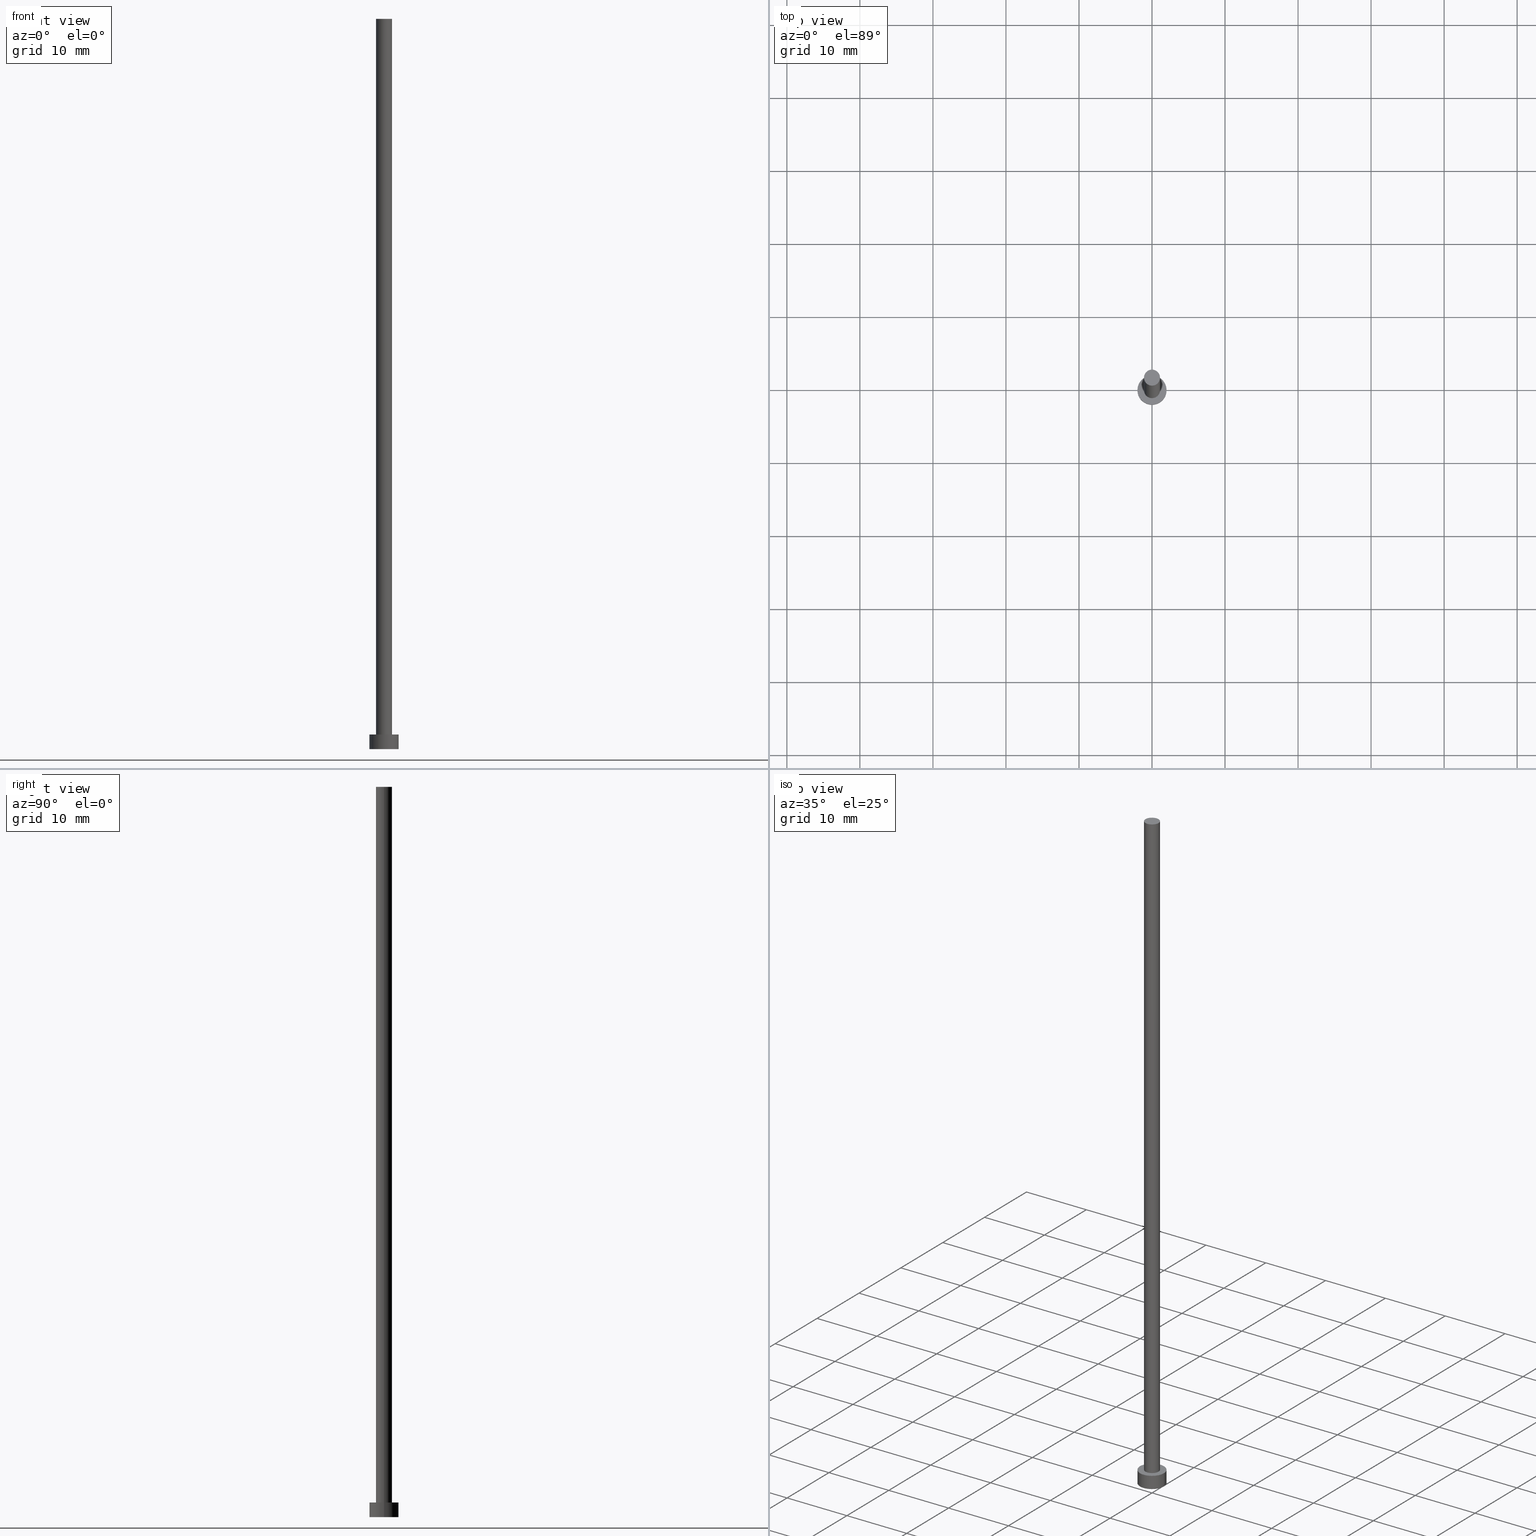
[diagram: canonical four-view strip — front | top / right | iso, engineering-drawing reading convention]
A machine part, canonical four-view strip (front | top / right | iso — engineering-drawing reading convention). The complete STEP part file that produces these views, byte-faithful:
ISO-10303-21;
HEADER;
FILE_DESCRIPTION (( 'STEP AP203' ),
    '1' );
FILE_NAME ('e103.STEP',
    '2023-02-13T14:55:09',
    ( '' ),
    ( '' ),
    'SwSTEP 2.0',
    'SolidWorks 2019',
    '' );
FILE_SCHEMA (( 'CONFIG_CONTROL_DESIGN' ));
ENDSEC;

DATA;
#1 = CARTESIAN_POINT ( 'NONE',  ( 1.100000000000000089, 1.347111479062088503E-16, 2.000000000000000000 ) ) ;
#2 = ORIENTED_EDGE ( 'NONE', *, *, #240, .T. ) ;
#3 = APPROVAL_PERSON_ORGANIZATION ( #106, #127, #14 ) ;
#4 = EDGE_LOOP ( 'NONE', ( #81, #147 ) ) ;
#5 = APPROVAL_PERSON_ORGANIZATION ( #168, #50, #136 ) ;
#6 = ORIENTED_EDGE ( 'NONE', *, *, #249, .F. ) ;
#7 = PERSON_AND_ORGANIZATION_ROLE ( 'classification_officer' ) ;
#8 = DIRECTION ( 'NONE',  ( -0.000000000000000000, -0.000000000000000000, -1.000000000000000000 ) ) ;
#9 = EDGE_CURVE ( 'NONE', #164, #171, #191, .T. ) ;
#10 = CARTESIAN_POINT ( 'NONE',  ( -2.000000000000000000, 0.000000000000000000, 2.000000000000000000 ) ) ;
#11 = SECURITY_CLASSIFICATION_LEVEL ( 'unclassified' ) ;
#12 = CIRCLE ( 'NONE', #80, 1.100000000000000089 ) ;
#13 = CARTESIAN_POINT ( 'NONE',  ( 0.000000000000000000, 0.000000000000000000, 2.000000000000000000 ) ) ;
#14 = APPROVAL_ROLE ( '' ) ;
#15 = CARTESIAN_POINT ( 'NONE',  ( 0.000000000000000000, 0.000000000000000000, 2.000000000000000000 ) ) ;
#16 = CYLINDRICAL_SURFACE ( 'NONE', #121, 2.000000000000000000 ) ;
#17 = AXIS2_PLACEMENT_3D ( 'NONE', #135, #90, #186 ) ;
#18 = CARTESIAN_POINT ( 'NONE',  ( 0.000000000000000000, 0.000000000000000000, 0.000000000000000000 ) ) ;
#19 = FACE_OUTER_BOUND ( 'NONE', #63, .T. ) ;
#20 = ORIENTED_EDGE ( 'NONE', *, *, #201, .F. ) ;
#21 = CIRCLE ( 'NONE', #166, 1.100000000000000089 ) ;
#22 = DIRECTION ( 'NONE',  ( -0.000000000000000000, -0.000000000000000000, -1.000000000000000000 ) ) ;
#23 = CC_DESIGN_PERSON_AND_ORGANIZATION_ASSIGNMENT ( #202, #146, ( #34 ) ) ;
#24 = PRODUCT_DEFINITION_SHAPE ( 'NONE', 'NONE',  #219 ) ;
#25 = EDGE_LOOP ( 'NONE', ( #139, #196, #62, #144 ) ) ;
#26 = AXIS2_PLACEMENT_3D ( 'NONE', #246, #8, #151 ) ;
#27 = APPROVAL_STATUS ( 'not_yet_approved' ) ;
#28 = DIRECTION ( 'NONE',  ( -0.000000000000000000, -0.000000000000000000, -1.000000000000000000 ) ) ;
#29 = EDGE_CURVE ( 'NONE', #171, #225, #12, .T. ) ;
#30 = SHAPE_DEFINITION_REPRESENTATION ( #24, #126 ) ;
#31 = LINE ( 'NONE', #71, #149 ) ;
#32 = DATE_AND_TIME ( #247, #184 ) ;
#33 = CARTESIAN_POINT ( 'NONE',  ( 0.000000000000000000, 0.000000000000000000, 2.000000000000000000 ) ) ;
#34 = PRODUCT_DEFINITION_FORMATION_WITH_SPECIFIED_SOURCE ( 'LIBOVOLN�', '', #108, .NOT_KNOWN. ) ;
#35 = FACE_OUTER_BOUND ( 'NONE', #4, .T. ) ;
#36 = ORIENTED_EDGE ( 'NONE', *, *, #9, .T. ) ;
#37 = CC_DESIGN_PERSON_AND_ORGANIZATION_ASSIGNMENT ( #185, #251, ( #34 ) ) ;
#38 = ORGANIZATION ( 'NEUR�EN�', 'NEUR�EN�', '' ) ;
#39 = EDGE_CURVE ( 'NONE', #66, #164, #21, .T. ) ;
#40 = DIRECTION ( 'NONE',  ( 1.000000000000000000, 0.000000000000000000, 0.000000000000000000 ) ) ;
#41 = CC_DESIGN_PERSON_AND_ORGANIZATION_ASSIGNMENT ( #236, #163, ( #108 ) ) ;
#42 = AXIS2_PLACEMENT_3D ( 'NONE', #137, #211, #97 ) ;
#43 = EDGE_LOOP ( 'NONE', ( #2, #220 ) ) ;
#44 = VERTEX_POINT ( 'NONE', #152 ) ;
#45 = ORIENTED_EDGE ( 'NONE', *, *, #143, .F. ) ;
#46 = VECTOR ( 'NONE', #22, 1000.000000000000000 ) ;
#47 = ORIENTED_EDGE ( 'NONE', *, *, #29, .F. ) ;
#48 = DATE_AND_TIME ( #95, #238 ) ;
#49 = ORIENTED_EDGE ( 'NONE', *, *, #86, .F. ) ;
#50 = APPROVAL ( #73, 'NEUR�EN�' ) ;
#51 = CIRCLE ( 'NONE', #42, 2.000000000000000000 ) ;
#52 = DATE_TIME_ROLE ( 'creation_date' ) ;
#53 = CARTESIAN_POINT ( 'NONE',  ( 1.100000000000000089, 1.347111479062088503E-16, 100.0000000000000000 ) ) ;
#54 = CARTESIAN_POINT ( 'NONE',  ( -1.100000000000000089, 0.000000000000000000, 100.0000000000000000 ) ) ;
#55 = DIRECTION ( 'NONE',  ( 0.000000000000000000, 0.000000000000000000, 1.000000000000000000 ) ) ;
#56 = DATE_AND_TIME ( #134, #57 ) ;
#57 = LOCAL_TIME ( 15, 55, 9.000000000000000000, #233 ) ;
#58 = CC_DESIGN_APPROVAL ( #50, ( #159 ) ) ;
#59 = CARTESIAN_POINT ( 'NONE',  ( 0.000000000000000000, 0.000000000000000000, 2.000000000000000000 ) ) ;
#60 = AXIS2_PLACEMENT_3D ( 'NONE', #194, #104, #180 ) ;
#61 = CIRCLE ( 'NONE', #116, 2.000000000000000000 ) ;
#62 = ORIENTED_EDGE ( 'NONE', *, *, #86, .T. ) ;
#63 = EDGE_LOOP ( 'NONE', ( #123, #49 ) ) ;
#64 = EDGE_CURVE ( 'NONE', #85, #44, #92, .T. ) ;
#65 = APPROVAL_PERSON_ORGANIZATION ( #89, #84, #132 ) ;
#66 = VERTEX_POINT ( 'NONE', #53 ) ;
#67 = MANIFOLD_SOLID_BREP ( 'P�idat vysunut�m3', #224 ) ;
#68 = CC_DESIGN_PERSON_AND_ORGANIZATION_ASSIGNMENT ( #114, #204, ( #219 ) ) ;
#69 = APPROVAL_DATE_TIME ( #32, #127 ) ;
#70 = DATE_AND_TIME ( #245, #199 ) ;
#71 = CARTESIAN_POINT ( 'NONE',  ( 2.000000000000000000, 2.449293598294706414E-16, 2.000000000000000000 ) ) ;
#72 = CC_DESIGN_APPROVAL ( #84, ( #34 ) ) ;
#73 = APPROVAL_STATUS ( 'not_yet_approved' ) ;
#74 = DIRECTION ( 'NONE',  ( -0.000000000000000000, -0.000000000000000000, -1.000000000000000000 ) ) ;
#75 = DIRECTION ( 'NONE',  ( 1.000000000000000000, 0.000000000000000000, 0.000000000000000000 ) ) ;
#76 = PERSON_AND_ORGANIZATION ( #91, #38 ) ;
#77 = FACE_OUTER_BOUND ( 'NONE', #178, .T. ) ;
#78 = AXIS2_PLACEMENT_3D ( 'NONE', #59, #119, #231 ) ;
#79 =( NAMED_UNIT ( * ) SI_UNIT ( $, .STERADIAN. ) SOLID_ANGLE_UNIT ( ) );
#80 = AXIS2_PLACEMENT_3D ( 'NONE', #13, #172, #75 ) ;
#81 = ORIENTED_EDGE ( 'NONE', *, *, #201, .T. ) ;
#82 = PLANE ( 'NONE',  #93 ) ;
#83 = EDGE_LOOP ( 'NONE', ( #45, #20, #161, #109 ) ) ;
#84 = APPROVAL ( #27, 'NEUR�EN�' ) ;
#85 = VERTEX_POINT ( 'NONE', #169 ) ;
#86 = EDGE_CURVE ( 'NONE', #88, #44, #154, .T. ) ;
#87 = CIRCLE ( 'NONE', #98, 2.000000000000000000 ) ;
#88 = VERTEX_POINT ( 'NONE', #153 ) ;
#89 = PERSON_AND_ORGANIZATION ( #91, #38 ) ;
#90 = DIRECTION ( 'NONE',  ( -0.000000000000000000, -0.000000000000000000, -1.000000000000000000 ) ) ;
#91 = PERSON ( 'NEUR�EN�', 'NEUR�EN�', 'NEUR�EN�', ('NEUR�EN�'), ('NEUR�EN�'), ('NEUR�EN�') ) ;
#92 = LINE ( 'NONE', #10, #125 ) ;
#93 = AXIS2_PLACEMENT_3D ( 'NONE', #213, #102, #138 ) ;
#94 = APPROVAL_DATE_TIME ( #70, #50 ) ;
#95 = CALENDAR_DATE ( 2023, 13, 2 ) ;
#96 = DIRECTION ( 'NONE',  ( -0.000000000000000000, -0.000000000000000000, -1.000000000000000000 ) ) ;
#97 = DIRECTION ( 'NONE',  ( 1.000000000000000000, 0.000000000000000000, 0.000000000000000000 ) ) ;
#98 = AXIS2_PLACEMENT_3D ( 'NONE', #160, #237, #156 ) ;
#99 = MECHANICAL_CONTEXT ( 'NONE', #207, 'mechanical' ) ;
#100 = CARTESIAN_POINT ( 'NONE',  ( 0.000000000000000000, 0.000000000000000000, 2.000000000000000000 ) ) ;
#101 = APPLICATION_PROTOCOL_DEFINITION ( 'international standard', 'config_control_design', 1994, #207 ) ;
#102 = DIRECTION ( 'NONE',  ( 0.000000000000000000, 0.000000000000000000, 1.000000000000000000 ) ) ;
#103 = ORIENTED_EDGE ( 'NONE', *, *, #105, .T. ) ;
#104 = DIRECTION ( 'NONE',  ( 0.000000000000000000, 0.000000000000000000, 1.000000000000000000 ) ) ;
#105 = EDGE_CURVE ( 'NONE', #225, #171, #216, .T. ) ;
#106 = PERSON_AND_ORGANIZATION ( #91, #38 ) ;
#107 = EDGE_LOOP ( 'NONE', ( #200, #217, #103, #141 ) ) ;
#108 = PRODUCT ( 'e103', 'e103', '', ( #99 ) ) ;
#109 = ORIENTED_EDGE ( 'NONE', *, *, #179, .T. ) ;
#110 = COORDINATED_UNIVERSAL_TIME_OFFSET ( 1, 0, .AHEAD. ) ;
#111 = DIRECTION ( 'NONE',  ( 0.000000000000000000, 0.000000000000000000, 1.000000000000000000 ) ) ;
#112 = FACE_OUTER_BOUND ( 'NONE', #107, .T. ) ;
#113 = ADVANCED_FACE ( 'NONE', ( #112 ), #206, .T. ) ;
#114 = PERSON_AND_ORGANIZATION ( #91, #38 ) ;
#115 = DIRECTION ( 'NONE',  ( 1.000000000000000000, 0.000000000000000000, 0.000000000000000000 ) ) ;
#116 = AXIS2_PLACEMENT_3D ( 'NONE', #133, #118, #115 ) ;
#117 = AXIS2_PLACEMENT_3D ( 'NONE', #100, #192, #140 ) ;
#118 = DIRECTION ( 'NONE',  ( 0.000000000000000000, 0.000000000000000000, 1.000000000000000000 ) ) ;
#119 = DIRECTION ( 'NONE',  ( 0.000000000000000000, 0.000000000000000000, 1.000000000000000000 ) ) ;
#120 = CARTESIAN_POINT ( 'NONE',  ( 1.100000000000000089, 1.347111479062088503E-16, 100.0000000000000000 ) ) ;
#121 = AXIS2_PLACEMENT_3D ( 'NONE', #15, #96, #173 ) ;
#122 =( LENGTH_UNIT ( ) NAMED_UNIT ( * ) SI_UNIT ( .MILLI., .METRE. ) );
#123 = ORIENTED_EDGE ( 'NONE', *, *, #179, .F. ) ;
#124 = UNCERTAINTY_MEASURE_WITH_UNIT (LENGTH_MEASURE( 1.000000000000000082E-05 ), #122, 'distance_accuracy_value', 'NONE');
#125 = VECTOR ( 'NONE', #232, 1000.000000000000000 ) ;
#126 = ADVANCED_BREP_SHAPE_REPRESENTATION ( 'e103', ( #67, #60 ), #129 ) ;
#127 = APPROVAL ( #181, 'NEUR�EN�' ) ;
#128 = VERTEX_POINT ( 'NONE', #229 ) ;
#129 =( GEOMETRIC_REPRESENTATION_CONTEXT ( 3 ) GLOBAL_UNCERTAINTY_ASSIGNED_CONTEXT ( ( #124 ) ) GLOBAL_UNIT_ASSIGNED_CONTEXT ( ( #122, #241, #79 ) ) REPRESENTATION_CONTEXT ( 'NONE', 'WORKASPACE' ) );
#130 = COORDINATED_UNIVERSAL_TIME_OFFSET ( 1, 0, .AHEAD. ) ;
#131 = FACE_BOUND ( 'NONE', #223, .T. ) ;
#132 = APPROVAL_ROLE ( '' ) ;
#133 = CARTESIAN_POINT ( 'NONE',  ( 0.000000000000000000, 0.000000000000000000, 2.000000000000000000 ) ) ;
#134 = CALENDAR_DATE ( 2023, 13, 2 ) ;
#135 = CARTESIAN_POINT ( 'NONE',  ( 0.000000000000000000, 0.000000000000000000, 100.0000000000000000 ) ) ;
#136 = APPROVAL_ROLE ( '' ) ;
#137 = CARTESIAN_POINT ( 'NONE',  ( 0.000000000000000000, 0.000000000000000000, 0.000000000000000000 ) ) ;
#138 = DIRECTION ( 'NONE',  ( 1.000000000000000000, 0.000000000000000000, -0.000000000000000000 ) ) ;
#139 = ORIENTED_EDGE ( 'NONE', *, *, #165, .F. ) ;
#140 = DIRECTION ( 'NONE',  ( -1.000000000000000000, 0.000000000000000000, 0.000000000000000000 ) ) ;
#141 = ORIENTED_EDGE ( 'NONE', *, *, #9, .F. ) ;
#142 = AXIS2_PLACEMENT_3D ( 'NONE', #33, #55, #252 ) ;
#143 = EDGE_CURVE ( 'NONE', #128, #88, #31, .T. ) ;
#144 = ORIENTED_EDGE ( 'NONE', *, *, #64, .F. ) ;
#145 = DIRECTION ( 'NONE',  ( 1.000000000000000000, 0.000000000000000000, 0.000000000000000000 ) ) ;
#146 = PERSON_AND_ORGANIZATION_ROLE ( 'creator' ) ;
#147 = ORIENTED_EDGE ( 'NONE', *, *, #165, .T. ) ;
#148 = ADVANCED_FACE ( 'NONE', ( #77 ), #210, .T. ) ;
#149 = VECTOR ( 'NONE', #28, 1000.000000000000000 ) ;
#150 = CALENDAR_DATE ( 2023, 13, 2 ) ;
#151 = DIRECTION ( 'NONE',  ( -1.000000000000000000, 0.000000000000000000, 0.000000000000000000 ) ) ;
#152 = CARTESIAN_POINT ( 'NONE',  ( -2.000000000000000000, 0.000000000000000000, 0.000000000000000000 ) ) ;
#153 = CARTESIAN_POINT ( 'NONE',  ( 2.000000000000000000, 2.449293598294706414E-16, 0.000000000000000000 ) ) ;
#154 = CIRCLE ( 'NONE', #221, 2.000000000000000000 ) ;
#155 = CARTESIAN_POINT ( 'NONE',  ( 0.000000000000000000, 0.000000000000000000, 100.0000000000000000 ) ) ;
#156 = DIRECTION ( 'NONE',  ( 1.000000000000000000, 0.000000000000000000, 0.000000000000000000 ) ) ;
#157 = FACE_OUTER_BOUND ( 'NONE', #43, .T. ) ;
#158 = ADVANCED_FACE ( 'NONE', ( #131, #35 ), #205, .T. ) ;
#159 = SECURITY_CLASSIFICATION ( '', '', #11 ) ;
#160 = CARTESIAN_POINT ( 'NONE',  ( 0.000000000000000000, 0.000000000000000000, 2.000000000000000000 ) ) ;
#161 = ORIENTED_EDGE ( 'NONE', *, *, #64, .T. ) ;
#162 = DIRECTION ( 'NONE',  ( 0.000000000000000000, 0.000000000000000000, 1.000000000000000000 ) ) ;
#163 = PERSON_AND_ORGANIZATION_ROLE ( 'design_owner' ) ;
#164 = VERTEX_POINT ( 'NONE', #54 ) ;
#165 = EDGE_CURVE ( 'NONE', #128, #85, #61, .T. ) ;
#166 = AXIS2_PLACEMENT_3D ( 'NONE', #187, #250, #145 ) ;
#167 = PRODUCT_RELATED_PRODUCT_CATEGORY ( 'detail', '', ( #108 ) ) ;
#168 = PERSON_AND_ORGANIZATION ( #91, #38 ) ;
#169 = CARTESIAN_POINT ( 'NONE',  ( -2.000000000000000000, 0.000000000000000000, 2.000000000000000000 ) ) ;
#170 = DATE_TIME_ROLE ( 'classification_date' ) ;
#171 = VERTEX_POINT ( 'NONE', #189 ) ;
#172 = DIRECTION ( 'NONE',  ( 0.000000000000000000, 0.000000000000000000, 1.000000000000000000 ) ) ;
#173 = DIRECTION ( 'NONE',  ( -1.000000000000000000, 0.000000000000000000, 0.000000000000000000 ) ) ;
#174 = ADVANCED_FACE ( 'NONE', ( #190 ), #16, .T. ) ;
#175 = FACE_OUTER_BOUND ( 'NONE', #25, .T. ) ;
#176 = CC_DESIGN_DATE_AND_TIME_ASSIGNMENT ( #56, #170, ( #159 ) ) ;
#177 = DIRECTION ( 'NONE',  ( 1.000000000000000000, 0.000000000000000000, -0.000000000000000000 ) ) ;
#178 = EDGE_LOOP ( 'NONE', ( #6, #239, #36, #243 ) ) ;
#179 = EDGE_CURVE ( 'NONE', #44, #88, #51, .T. ) ;
#180 = DIRECTION ( 'NONE',  ( 1.000000000000000000, 0.000000000000000000, 0.000000000000000000 ) ) ;
#181 = APPROVAL_STATUS ( 'not_yet_approved' ) ;
#182 = CC_DESIGN_APPROVAL ( #127, ( #219 ) ) ;
#183 = APPLICATION_PROTOCOL_DEFINITION ( 'international standard', 'config_control_design', 1994, #222 ) ;
#184 = LOCAL_TIME ( 15, 55, 9.000000000000000000, #227 ) ;
#185 = PERSON_AND_ORGANIZATION ( #91, #38 ) ;
#186 = DIRECTION ( 'NONE',  ( -1.000000000000000000, 0.000000000000000000, 0.000000000000000000 ) ) ;
#187 = CARTESIAN_POINT ( 'NONE',  ( 0.000000000000000000, 0.000000000000000000, 100.0000000000000000 ) ) ;
#188 = COORDINATED_UNIVERSAL_TIME_OFFSET ( 1, 0, .AHEAD. ) ;
#189 = CARTESIAN_POINT ( 'NONE',  ( -1.100000000000000089, 0.000000000000000000, 2.000000000000000000 ) ) ;
#190 = FACE_OUTER_BOUND ( 'NONE', #83, .T. ) ;
#191 = LINE ( 'NONE', #248, #254 ) ;
#192 = DIRECTION ( 'NONE',  ( -0.000000000000000000, -0.000000000000000000, -1.000000000000000000 ) ) ;
#193 = AXIS2_PLACEMENT_3D ( 'NONE', #155, #255, #40 ) ;
#194 = CARTESIAN_POINT ( 'NONE',  ( 0.000000000000000000, 0.000000000000000000, 0.000000000000000000 ) ) ;
#195 = CC_DESIGN_DATE_AND_TIME_ASSIGNMENT ( #48, #52, ( #219 ) ) ;
#196 = ORIENTED_EDGE ( 'NONE', *, *, #143, .T. ) ;
#197 = ADVANCED_FACE ( 'NONE', ( #175 ), #253, .T. ) ;
#198 = CIRCLE ( 'NONE', #193, 1.100000000000000089 ) ;
#199 = LOCAL_TIME ( 15, 55, 9.000000000000000000, #188 ) ;
#200 = ORIENTED_EDGE ( 'NONE', *, *, #39, .F. ) ;
#201 = EDGE_CURVE ( 'NONE', #85, #128, #87, .T. ) ;
#202 = PERSON_AND_ORGANIZATION ( #91, #38 ) ;
#203 = CARTESIAN_POINT ( 'NONE',  ( 0.000000000000000000, 0.000000000000000000, 0.000000000000000000 ) ) ;
#204 = PERSON_AND_ORGANIZATION_ROLE ( 'creator' ) ;
#205 = PLANE ( 'NONE',  #78 ) ;
#206 = CYLINDRICAL_SURFACE ( 'NONE', #17, 1.100000000000000089 ) ;
#207 = APPLICATION_CONTEXT ( 'configuration controlled 3d designs of mechanical parts and assemblies' ) ;
#208 = ADVANCED_FACE ( 'NONE', ( #157 ), #82, .T. ) ;
#209 = DATE_AND_TIME ( #150, #234 ) ;
#210 = CYLINDRICAL_SURFACE ( 'NONE', #26, 1.100000000000000089 ) ;
#211 = DIRECTION ( 'NONE',  ( 0.000000000000000000, 0.000000000000000000, 1.000000000000000000 ) ) ;
#212 = LINE ( 'NONE', #120, #46 ) ;
#213 = CARTESIAN_POINT ( 'NONE',  ( 0.000000000000000000, 0.000000000000000000, 100.0000000000000000 ) ) ;
#214 = ADVANCED_FACE ( 'NONE', ( #19 ), #215, .F. ) ;
#215 = PLANE ( 'NONE',  #228 ) ;
#216 = CIRCLE ( 'NONE', #142, 1.100000000000000089 ) ;
#217 = ORIENTED_EDGE ( 'NONE', *, *, #249, .T. ) ;
#218 = DESIGN_CONTEXT ( 'detailed design', #222, 'design' ) ;
#219 = PRODUCT_DEFINITION ( 'NEZN�M�', '', #34, #218 ) ;
#220 = ORIENTED_EDGE ( 'NONE', *, *, #39, .T. ) ;
#221 = AXIS2_PLACEMENT_3D ( 'NONE', #203, #111, #226 ) ;
#222 = APPLICATION_CONTEXT ( 'configuration controlled 3d designs of mechanical parts and assemblies' ) ;
#223 = EDGE_LOOP ( 'NONE', ( #47, #244 ) ) ;
#224 = CLOSED_SHELL ( 'NONE', ( #113, #197, #174, #158, #214, #148, #208 ) ) ;
#225 = VERTEX_POINT ( 'NONE', #1 ) ;
#226 = DIRECTION ( 'NONE',  ( 1.000000000000000000, 0.000000000000000000, 0.000000000000000000 ) ) ;
#227 = COORDINATED_UNIVERSAL_TIME_OFFSET ( 1, 0, .AHEAD. ) ;
#228 = AXIS2_PLACEMENT_3D ( 'NONE', #18, #162, #177 ) ;
#229 = CARTESIAN_POINT ( 'NONE',  ( 2.000000000000000000, 2.449293598294706414E-16, 2.000000000000000000 ) ) ;
#230 = APPROVAL_DATE_TIME ( #209, #84 ) ;
#231 = DIRECTION ( 'NONE',  ( 1.000000000000000000, 0.000000000000000000, -0.000000000000000000 ) ) ;
#232 = DIRECTION ( 'NONE',  ( -0.000000000000000000, -0.000000000000000000, -1.000000000000000000 ) ) ;
#233 = COORDINATED_UNIVERSAL_TIME_OFFSET ( 1, 0, .AHEAD. ) ;
#234 = LOCAL_TIME ( 15, 55, 9.000000000000000000, #110 ) ;
#235 = CC_DESIGN_PERSON_AND_ORGANIZATION_ASSIGNMENT ( #76, #7, ( #159 ) ) ;
#236 = PERSON_AND_ORGANIZATION ( #91, #38 ) ;
#237 = DIRECTION ( 'NONE',  ( 0.000000000000000000, 0.000000000000000000, 1.000000000000000000 ) ) ;
#238 = LOCAL_TIME ( 15, 55, 9.000000000000000000, #130 ) ;
#239 = ORIENTED_EDGE ( 'NONE', *, *, #240, .F. ) ;
#240 = EDGE_CURVE ( 'NONE', #164, #66, #198, .T. ) ;
#241 =( NAMED_UNIT ( * ) PLANE_ANGLE_UNIT ( ) SI_UNIT ( $, .RADIAN. ) );
#242 = CC_DESIGN_SECURITY_CLASSIFICATION ( #159, ( #34 ) ) ;
#243 = ORIENTED_EDGE ( 'NONE', *, *, #29, .T. ) ;
#244 = ORIENTED_EDGE ( 'NONE', *, *, #105, .F. ) ;
#245 = CALENDAR_DATE ( 2023, 13, 2 ) ;
#246 = CARTESIAN_POINT ( 'NONE',  ( 0.000000000000000000, 0.000000000000000000, 100.0000000000000000 ) ) ;
#247 = CALENDAR_DATE ( 2023, 13, 2 ) ;
#248 = CARTESIAN_POINT ( 'NONE',  ( -1.100000000000000089, 0.000000000000000000, 100.0000000000000000 ) ) ;
#249 = EDGE_CURVE ( 'NONE', #66, #225, #212, .T. ) ;
#250 = DIRECTION ( 'NONE',  ( 0.000000000000000000, 0.000000000000000000, 1.000000000000000000 ) ) ;
#251 = PERSON_AND_ORGANIZATION_ROLE ( 'design_supplier' ) ;
#252 = DIRECTION ( 'NONE',  ( 1.000000000000000000, 0.000000000000000000, 0.000000000000000000 ) ) ;
#253 = CYLINDRICAL_SURFACE ( 'NONE', #117, 2.000000000000000000 ) ;
#254 = VECTOR ( 'NONE', #74, 1000.000000000000000 ) ;
#255 = DIRECTION ( 'NONE',  ( 0.000000000000000000, 0.000000000000000000, 1.000000000000000000 ) ) ;
ENDSEC;
END-ISO-10303-21;
